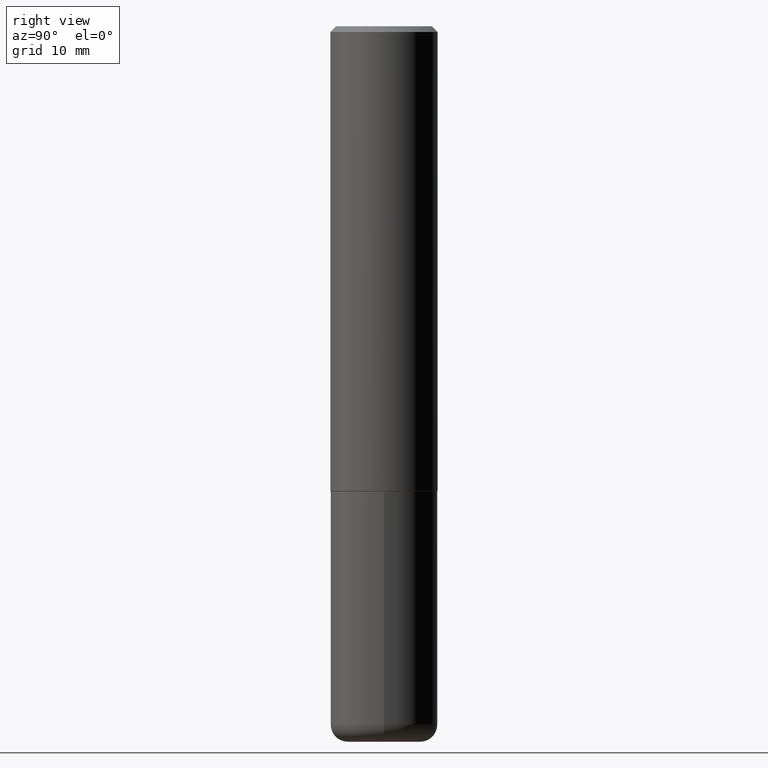
[diagram: clean part render]
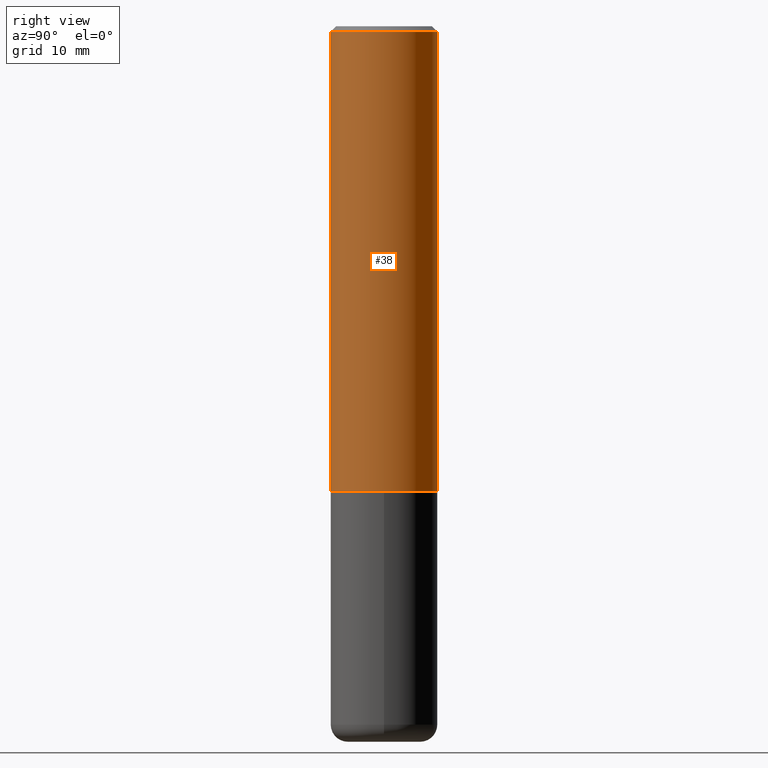
[diagram: same view with one face highlighted and labeled with its STEP entity id]
A machine part, right view. The second image highlights one B-rep face of the part: STEP entity #38.
In plain terms, the highlighted cylindrical surface (partial cylindrical patch) has radius 4.7625 mm, axis along (-0, 0, 1).
Its self-contained STEP definition (entity closure, byte-faithful):
#3 = AXIS2_PLACEMENT_3D ( 'NONE', #41, #269, #229 ) ;
#10 = DIRECTION ( 'NONE',  ( -2.444664747397133900E-29, 3.492632796791749246E-15, 1.000000000000000000 ) ) ;
#24 = LINE ( 'NONE', #122, #177 ) ;
#38 = ADVANCED_FACE ( 'NONE', ( #134 ), #257, .T. ) ;
#41 = CARTESIAN_POINT ( 'NONE',  ( 3.970135549772946054E-29, -5.672035661989801997E-15, -1.624000000000000110 ) ) ;
#50 = DIRECTION ( 'NONE',  ( -6.982962677686266711E-15, -1.000000000000000000, 3.483106191921935949E-15 ) ) ;
#57 = AXIS2_PLACEMENT_3D ( 'NONE', #250, #359, #50 ) ;
#63 = EDGE_CURVE ( 'NONE', #137, #158, #206, .T. ) ;
#67 = EDGE_CURVE ( 'NONE', #137, #406, #196, .T. ) ;
#75 = CARTESIAN_POINT ( 'NONE',  ( -1.286343374582161379E-15, -0.1875000000000000555, -0.01999999999999938979 ) ) ;
#100 = DIRECTION ( 'NONE',  ( -2.444664747397133900E-29, 3.492632796791749246E-15, 1.000000000000000000 ) ) ;
#117 = CARTESIAN_POINT ( 'NONE',  ( 1.309305502066175205E-15, 0.1874999999999999167, -0.02000000000000069431 ) ) ;
#122 = CARTESIAN_POINT ( 'NONE',  ( 1.332267629550188440E-15, 0.1875000000000001110, -6.548686493984534028E-16 ) ) ;
#134 = FACE_OUTER_BOUND ( 'NONE', #281, .T. ) ;
#137 = VERTEX_POINT ( 'NONE', #205 ) ;
#139 = AXIS2_PLACEMENT_3D ( 'NONE', #392, #100, #183 ) ;
#152 = CARTESIAN_POINT ( 'NONE',  ( 1.332267629550208753E-15, 0.1874999999999945599, -1.624000000000000776 ) ) ;
#158 = VERTEX_POINT ( 'NONE', #152 ) ;
#162 = ORIENTED_EDGE ( 'NONE', *, *, #181, .T. ) ;
#177 = VECTOR ( 'NONE', #244, 39.37007874015748143 ) ;
#181 = EDGE_CURVE ( 'NONE', #158, #187, #24, .T. ) ;
#183 = DIRECTION ( 'NONE',  ( -6.982962677686266711E-15, -1.000000000000000000, 3.492632796791749246E-15 ) ) ;
#187 = VERTEX_POINT ( 'NONE', #117 ) ;
#188 = ORIENTED_EDGE ( 'NONE', *, *, #230, .F. ) ;
#196 = LINE ( 'NONE', #327, #293 ) ;
#205 = CARTESIAN_POINT ( 'NONE',  ( -1.309305502066136748E-15, -0.1875000000000058842, -1.623999999999999666 ) ) ;
#206 = CIRCLE ( 'NONE', #3, 0.1875000000000002220 ) ;
#229 = DIRECTION ( 'NONE',  ( -6.982962677686265922E-15, -1.000000000000000000, 2.913971193241877216E-15 ) ) ;
#230 = EDGE_CURVE ( 'NONE', #406, #187, #370, .T. ) ;
#244 = DIRECTION ( 'NONE',  ( -2.444664747397133900E-29, 3.492632796791749246E-15, 1.000000000000000000 ) ) ;
#250 = CARTESIAN_POINT ( 'NONE',  ( 4.889329494794278169E-31, -6.985265593583513974E-17, -0.02000000000000004205 ) ) ;
#257 = CYLINDRICAL_SURFACE ( 'NONE', #139, 0.1875000000000001110 ) ;
#269 = DIRECTION ( 'NONE',  ( -2.444664747397133900E-29, 3.492632796791749246E-15, 1.000000000000000000 ) ) ;
#281 = EDGE_LOOP ( 'NONE', ( #388, #162, #188, #352 ) ) ;
#293 = VECTOR ( 'NONE', #10, 39.37007874015748143 ) ;
#327 = CARTESIAN_POINT ( 'NONE',  ( -1.309305502066175797E-15, -0.1875000000000001110, 6.548686493984534028E-16 ) ) ;
#352 = ORIENTED_EDGE ( 'NONE', *, *, #67, .F. ) ;
#359 = DIRECTION ( 'NONE',  ( -2.444664747397133900E-29, 3.492632796791749246E-15, 1.000000000000000000 ) ) ;
#370 = CIRCLE ( 'NONE', #57, 0.1874999999999999722 ) ;
#388 = ORIENTED_EDGE ( 'NONE', *, *, #63, .T. ) ;
#392 = CARTESIAN_POINT ( 'NONE',  ( 0.000000000000000000, 0.000000000000000000, 0.000000000000000000 ) ) ;
#406 = VERTEX_POINT ( 'NONE', #75 ) ;